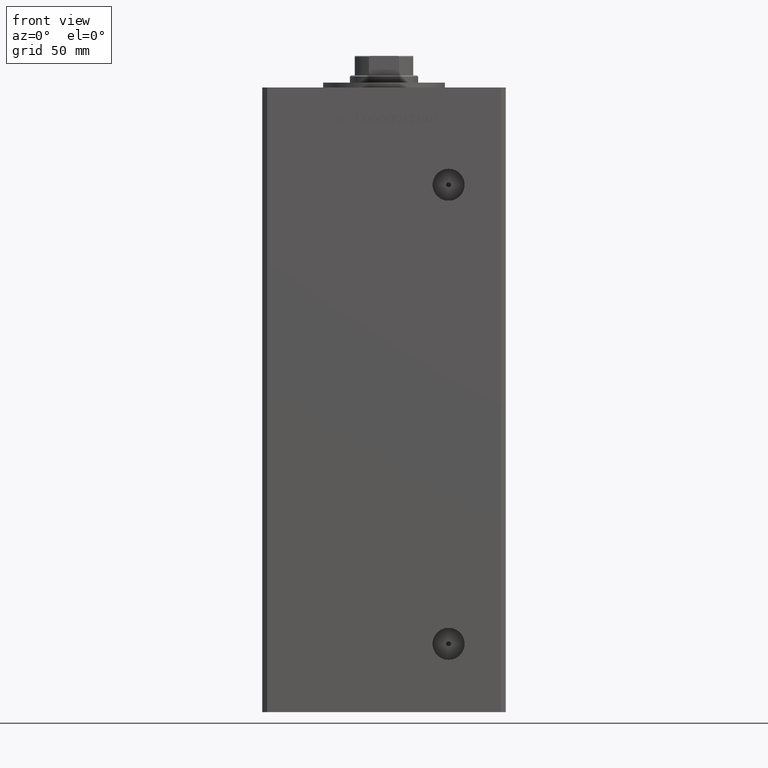
[diagram: clean part render]
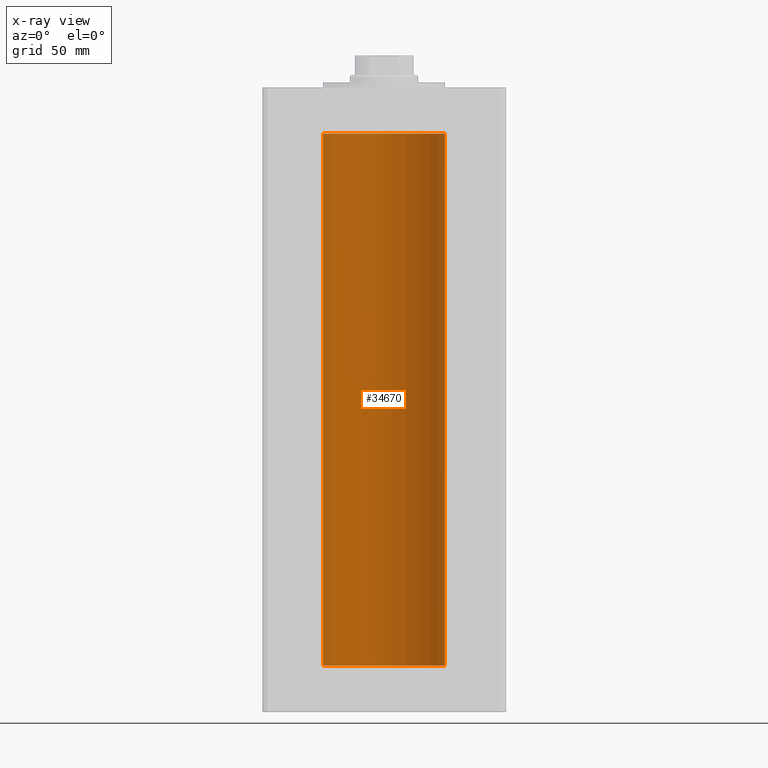
[diagram: x-ray — body ghosted, one internal face saturated and labeled with its STEP entity id]
A machine part, front view, then the same camera in x-ray: the body is ghosted and one INTERNAL B-rep face — a face not visible from any outside direction — is saturated and labeled: STEP entity #34670.
In plain terms, the highlighted cylindrical surface (partial cylindrical patch) has radius 25 mm, axis along (-0, -0, -1).
Its self-contained STEP definition (entity closure, byte-faithful):
#120 = CARTESIAN_POINT ( 'NONE',  ( -25.00000000000000000, 0.000000000000000000, 0.000000000000000000 ) ) ;
#2581 = EDGE_CURVE ( 'NONE', #28512, #45906, #36812, .T. ) ;
#3317 = ORIENTED_EDGE ( 'NONE', *, *, #36850, .T. ) ;
#5987 = VECTOR ( 'NONE', #31973, 1000.000000000000000 ) ;
#6098 = VERTEX_POINT ( 'NONE', #11468 ) ;
#7121 = ORIENTED_EDGE ( 'NONE', *, *, #40429, .F. ) ;
#10255 = ORIENTED_EDGE ( 'NONE', *, *, #49041, .F. ) ;
#10775 = DIRECTION ( 'NONE',  ( -0.000000000000000000, -0.000000000000000000, -1.000000000000000000 ) ) ;
#11468 = CARTESIAN_POINT ( 'NONE',  ( 25.00000000000000000, 3.061616997868383043E-15, 0.000000000000000000 ) ) ;
#11901 = CARTESIAN_POINT ( 'NONE',  ( 0.000000000000000000, 0.000000000000000000, 218.5000000000000000 ) ) ;
#11926 = DIRECTION ( 'NONE',  ( 1.000000000000000000, 0.000000000000000000, 0.000000000000000000 ) ) ;
#15877 = CARTESIAN_POINT ( 'NONE',  ( -25.00000000000000000, 0.000000000000000000, 218.5000000000000000 ) ) ;
#19021 = CYLINDRICAL_SURFACE ( 'NONE', #39595, 25.00000000000000000 ) ;
#19759 = AXIS2_PLACEMENT_3D ( 'NONE', #48812, #39615, #11926 ) ;
#22231 = VERTEX_POINT ( 'NONE', #120 ) ;
#22602 = EDGE_LOOP ( 'NONE', ( #7121, #47358, #3317, #10255 ) ) ;
#26688 = CARTESIAN_POINT ( 'NONE',  ( -25.00000000000000000, 0.000000000000000000, 218.5000000000000000 ) ) ;
#27726 = DIRECTION ( 'NONE',  ( -0.000000000000000000, -0.000000000000000000, -1.000000000000000000 ) ) ;
#28512 = VERTEX_POINT ( 'NONE', #32238 ) ;
#30904 = DIRECTION ( 'NONE',  ( -1.000000000000000000, 0.000000000000000000, 0.000000000000000000 ) ) ;
#31771 = AXIS2_PLACEMENT_3D ( 'NONE', #40918, #39442, #40403 ) ;
#31973 = DIRECTION ( 'NONE',  ( -0.000000000000000000, -0.000000000000000000, -1.000000000000000000 ) ) ;
#32238 = CARTESIAN_POINT ( 'NONE',  ( 25.00000000000000000, 3.061616997868383043E-15, 218.5000000000000000 ) ) ;
#34248 = CARTESIAN_POINT ( 'NONE',  ( 25.00000000000000000, 3.061616997868383043E-15, 218.5000000000000000 ) ) ;
#34670 = ADVANCED_FACE ( 'NONE', ( #47766 ), #19021, .F. ) ;
#36812 = CIRCLE ( 'NONE', #31771, 25.00000000000000000 ) ;
#36850 = EDGE_CURVE ( 'NONE', #45906, #22231, #49539, .T. ) ;
#38985 = LINE ( 'NONE', #34248, #39748 ) ;
#39442 = DIRECTION ( 'NONE',  ( -0.000000000000000000, 0.000000000000000000, 1.000000000000000000 ) ) ;
#39595 = AXIS2_PLACEMENT_3D ( 'NONE', #11901, #27726, #30904 ) ;
#39615 = DIRECTION ( 'NONE',  ( -0.000000000000000000, 0.000000000000000000, 1.000000000000000000 ) ) ;
#39748 = VECTOR ( 'NONE', #10775, 1000.000000000000000 ) ;
#40403 = DIRECTION ( 'NONE',  ( 1.000000000000000000, 0.000000000000000000, 0.000000000000000000 ) ) ;
#40429 = EDGE_CURVE ( 'NONE', #28512, #6098, #38985, .T. ) ;
#40918 = CARTESIAN_POINT ( 'NONE',  ( 0.000000000000000000, 0.000000000000000000, 218.5000000000000000 ) ) ;
#45034 = CIRCLE ( 'NONE', #19759, 25.00000000000000000 ) ;
#45906 = VERTEX_POINT ( 'NONE', #26688 ) ;
#47358 = ORIENTED_EDGE ( 'NONE', *, *, #2581, .T. ) ;
#47766 = FACE_OUTER_BOUND ( 'NONE', #22602, .T. ) ;
#48812 = CARTESIAN_POINT ( 'NONE',  ( 0.000000000000000000, 0.000000000000000000, 0.000000000000000000 ) ) ;
#49041 = EDGE_CURVE ( 'NONE', #6098, #22231, #45034, .T. ) ;
#49539 = LINE ( 'NONE', #15877, #5987 ) ;